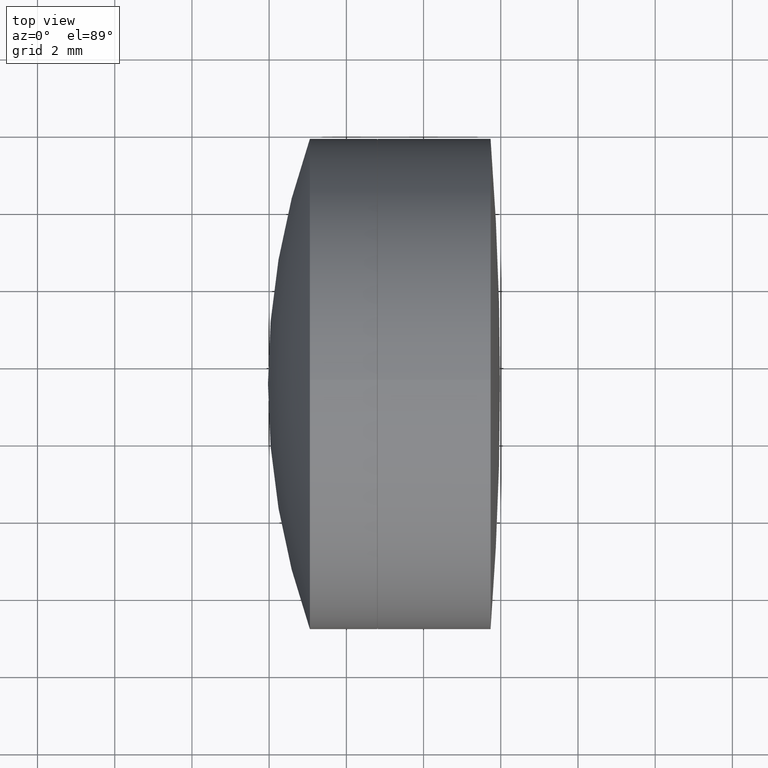
[diagram: clean part render]
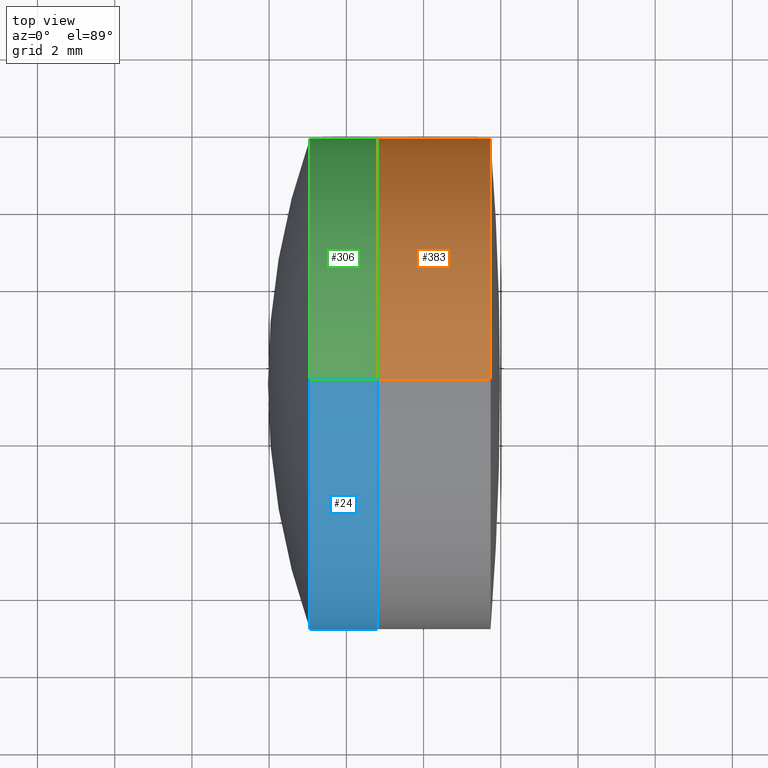
[diagram: same view with three faces highlighted in distinct colors, each labeled with its STEP entity id]
A machine part, top view with three faces highlighted in distinct colors.
Their STEP definitions:

[orange] entity #383 — the highlighted cylindrical surface (partial cylindrical patch) has radius 6.35 mm, axis along (-1, -0, -0).
#9 = EDGE_LOOP ( 'NONE', ( #350, #143, #53, #262, #276, #243 ) ) ;
#16 = DIRECTION ( 'NONE',  ( -1.000000000000000000, -0.000000000000000000, -0.000000000000000000 ) ) ;
#18 = DIRECTION ( 'NONE',  ( 0.000000000000000000, 0.000000000000000000, 1.000000000000000000 ) ) ;
#23 = DIRECTION ( 'NONE',  ( 0.000000000000000000, 0.000000000000000000, 1.000000000000000000 ) ) ;
#25 = VECTOR ( 'NONE', #446, 1000.000000000000000 ) ;
#32 = CIRCLE ( 'NONE', #51, 6.349999999999999645 ) ;
#51 = AXIS2_PLACEMENT_3D ( 'NONE', #328, #397, #18 ) ;
#53 = ORIENTED_EDGE ( 'NONE', *, *, #160, .F. ) ;
#62 = CARTESIAN_POINT ( 'NONE',  ( -74.26425793104048978, 21.84225014134576170, 0.000000000000000000 ) ) ;
#63 = AXIS2_PLACEMENT_3D ( 'NONE', #310, #241, #314 ) ;
#73 = VERTEX_POINT ( 'NONE', #192 ) ;
#79 = EDGE_CURVE ( 'NONE', #193, #124, #360, .T. ) ;
#80 = CARTESIAN_POINT ( 'NONE',  ( -77.18875715362992196, 21.84225014134572262, 0.000000000000000000 ) ) ;
#87 = AXIS2_PLACEMENT_3D ( 'NONE', #369, #229, #23 ) ;
#110 = CARTESIAN_POINT ( 'NONE',  ( -77.18875715362992196, 15.49225014134571232, 0.000000000000000000 ) ) ;
#117 = CARTESIAN_POINT ( 'NONE',  ( -76.01897937436920927, 15.49225014134571232, 0.000000000000000000 ) ) ;
#120 = DIRECTION ( 'NONE',  ( 0.000000000000000000, 0.000000000000000000, 1.000000000000000000 ) ) ;
#124 = VERTEX_POINT ( 'NONE', #62 ) ;
#142 = CARTESIAN_POINT ( 'NONE',  ( -76.01897937436920927, 15.49225014134571232, -6.349999999999999645 ) ) ;
#143 = ORIENTED_EDGE ( 'NONE', *, *, #149, .T. ) ;
#149 = EDGE_CURVE ( 'NONE', #209, #73, #250, .T. ) ;
#160 = EDGE_CURVE ( 'NONE', #263, #73, #258, .T. ) ;
#174 = CARTESIAN_POINT ( 'NONE',  ( -77.18875715362992196, 15.49225014134571232, 6.349999999999999645 ) ) ;
#178 = DIRECTION ( 'NONE',  ( -1.000000000000000000, -0.000000000000000000, -0.000000000000000000 ) ) ;
#180 = LINE ( 'NONE', #324, #302 ) ;
#192 = CARTESIAN_POINT ( 'NONE',  ( -77.18875715362992196, 15.49225014134571232, -6.349999999999999645 ) ) ;
#193 = VERTEX_POINT ( 'NONE', #382 ) ;
#198 = AXIS2_PLACEMENT_3D ( 'NONE', #117, #357, #120 ) ;
#209 = VERTEX_POINT ( 'NONE', #414 ) ;
#229 = DIRECTION ( 'NONE',  ( -1.000000000000000000, -0.000000000000000000, -0.000000000000000000 ) ) ;
#241 = DIRECTION ( 'NONE',  ( -1.000000000000000000, -0.000000000000000000, -0.000000000000000000 ) ) ;
#243 = ORIENTED_EDGE ( 'NONE', *, *, #79, .T. ) ;
#250 = LINE ( 'NONE', #142, #25 ) ;
#258 = CIRCLE ( 'NONE', #330, 6.349999999999999645 ) ;
#260 = CIRCLE ( 'NONE', #63, 6.349999999999999645 ) ;
#262 = ORIENTED_EDGE ( 'NONE', *, *, #280, .F. ) ;
#263 = VERTEX_POINT ( 'NONE', #80 ) ;
#276 = ORIENTED_EDGE ( 'NONE', *, *, #428, .F. ) ;
#280 = EDGE_CURVE ( 'NONE', #442, #263, #260, .T. ) ;
#295 = FACE_OUTER_BOUND ( 'NONE', #9, .T. ) ;
#302 = VECTOR ( 'NONE', #16, 1000.000000000000000 ) ;
#310 = CARTESIAN_POINT ( 'NONE',  ( -77.18875715362992196, 15.49225014134571232, 0.000000000000000000 ) ) ;
#314 = DIRECTION ( 'NONE',  ( 0.000000000000000000, 0.000000000000000000, 1.000000000000000000 ) ) ;
#324 = CARTESIAN_POINT ( 'NONE',  ( -76.01897937436920927, 15.49225014134571232, 6.349999999999999645 ) ) ;
#328 = CARTESIAN_POINT ( 'NONE',  ( -74.26425793104050399, 15.49225014134571232, 0.000000000000000000 ) ) ;
#330 = AXIS2_PLACEMENT_3D ( 'NONE', #110, #178, #386 ) ;
#350 = ORIENTED_EDGE ( 'NONE', *, *, #372, .T. ) ;
#357 = DIRECTION ( 'NONE',  ( -1.000000000000000000, -0.000000000000000000, -0.000000000000000000 ) ) ;
#360 = CIRCLE ( 'NONE', #87, 6.349999999999999645 ) ;
#364 = CYLINDRICAL_SURFACE ( 'NONE', #198, 6.349999999999999645 ) ;
#369 = CARTESIAN_POINT ( 'NONE',  ( -74.26425793104050399, 15.49225014134571232, 0.000000000000000000 ) ) ;
#372 = EDGE_CURVE ( 'NONE', #124, #209, #32, .T. ) ;
#382 = CARTESIAN_POINT ( 'NONE',  ( -74.26425793104050399, 15.49225014134571232, 6.349999999999999645 ) ) ;
#383 = ADVANCED_FACE ( 'NONE', ( #295 ), #364, .T. ) ;
#386 = DIRECTION ( 'NONE',  ( 0.000000000000000000, 0.000000000000000000, 1.000000000000000000 ) ) ;
#397 = DIRECTION ( 'NONE',  ( -1.000000000000000000, -0.000000000000000000, -0.000000000000000000 ) ) ;
#414 = CARTESIAN_POINT ( 'NONE',  ( -74.26425793104050399, 15.49225014134571232, -6.349999999999999645 ) ) ;
#428 = EDGE_CURVE ( 'NONE', #193, #442, #180, .T. ) ;
#442 = VERTEX_POINT ( 'NONE', #174 ) ;
#446 = DIRECTION ( 'NONE',  ( -1.000000000000000000, -0.000000000000000000, -0.000000000000000000 ) ) ;

[blue] entity #24 — the highlighted cylindrical surface (partial cylindrical patch) has radius 6.35 mm, axis along (-1, -0, -0).
#1 = EDGE_CURVE ( 'NONE', #164, #22, #299, .T. ) ;
#20 = CARTESIAN_POINT ( 'NONE',  ( -80.03096436547446046, 15.49148678616774788, -0.009771238364928054587 ) ) ;
#21 = VECTOR ( 'NONE', #353, 1000.000000000000000 ) ;
#22 = VERTEX_POINT ( 'NONE', #218 ) ;
#24 = ADVANCED_FACE ( 'NONE', ( #112 ), #187, .T. ) ;
#43 = CIRCLE ( 'NONE', #405, 6.349999999999999645 ) ;
#48 = CARTESIAN_POINT ( 'NONE',  ( -77.20144514165072280, 15.49148678616774788, -0.009771238364928054587 ) ) ;
#64 = CARTESIAN_POINT ( 'NONE',  ( -78.94570583853140988, 15.49148678616774788, -0.009771238364928054587 ) ) ;
#69 = EDGE_CURVE ( 'NONE', #380, #439, #89, .T. ) ;
#76 = VERTEX_POINT ( 'NONE', #333 ) ;
#86 = EDGE_CURVE ( 'NONE', #246, #380, #43, .T. ) ;
#88 = CARTESIAN_POINT ( 'NONE',  ( -77.20144514165072280, 15.49148678616774788, 6.340228761635072097 ) ) ;
#89 = LINE ( 'NONE', #251, #343 ) ;
#90 = CARTESIAN_POINT ( 'NONE',  ( -78.94570583853140988, 15.49148678616774788, 6.340228761635072097 ) ) ;
#97 = DIRECTION ( 'NONE',  ( 0.000000000000000000, 0.000000000000000000, 1.000000000000000000 ) ) ;
#111 = EDGE_CURVE ( 'NONE', #76, #439, #323, .T. ) ;
#112 = FACE_OUTER_BOUND ( 'NONE', #345, .T. ) ;
#122 = ORIENTED_EDGE ( 'NONE', *, *, #1, .F. ) ;
#127 = DIRECTION ( 'NONE',  ( 0.000000000000000000, 0.000000000000000000, 1.000000000000000000 ) ) ;
#132 = DIRECTION ( 'NONE',  ( -1.000000000000000000, -0.000000000000000000, -0.000000000000000000 ) ) ;
#144 = EDGE_CURVE ( 'NONE', #22, #76, #242, .T. ) ;
#157 = ORIENTED_EDGE ( 'NONE', *, *, #144, .F. ) ;
#158 = CARTESIAN_POINT ( 'NONE',  ( -77.20144514165072280, 15.49148678616774788, -0.009771238364928054587 ) ) ;
#159 = AXIS2_PLACEMENT_3D ( 'NONE', #227, #403, #211 ) ;
#164 = VERTEX_POINT ( 'NONE', #292 ) ;
#187 = CYLINDRICAL_SURFACE ( 'NONE', #370, 6.349999999999999645 ) ;
#188 = DIRECTION ( 'NONE',  ( -1.000000000000000000, -0.000000000000000000, -0.000000000000000000 ) ) ;
#206 = AXIS2_PLACEMENT_3D ( 'NONE', #48, #427, #322 ) ;
#211 = DIRECTION ( 'NONE',  ( 0.000000000000000000, 0.000000000000000000, 1.000000000000000000 ) ) ;
#218 = CARTESIAN_POINT ( 'NONE',  ( -78.94570583853140988, 15.49148678616774788, -6.359771238364928081 ) ) ;
#227 = CARTESIAN_POINT ( 'NONE',  ( -78.94570583853140988, 15.49148678616774788, -0.009771238364928054587 ) ) ;
#242 = CIRCLE ( 'NONE', #159, 6.349999999999999645 ) ;
#246 = VERTEX_POINT ( 'NONE', #388 ) ;
#249 = DIRECTION ( 'NONE',  ( 0.000000000000000000, 0.000000000000000000, 1.000000000000000000 ) ) ;
#251 = CARTESIAN_POINT ( 'NONE',  ( -80.03096436547446046, 15.49148678616774788, 6.340228761635072097 ) ) ;
#292 = CARTESIAN_POINT ( 'NONE',  ( -77.20144514165072280, 15.49148678616774788, -6.359771238364928081 ) ) ;
#299 = LINE ( 'NONE', #433, #21 ) ;
#300 = AXIS2_PLACEMENT_3D ( 'NONE', #64, #132, #97 ) ;
#301 = ORIENTED_EDGE ( 'NONE', *, *, #415, .T. ) ;
#304 = DIRECTION ( 'NONE',  ( -1.000000000000000000, -0.000000000000000000, -0.000000000000000000 ) ) ;
#322 = DIRECTION ( 'NONE',  ( 0.000000000000000000, 0.000000000000000000, 1.000000000000000000 ) ) ;
#323 = CIRCLE ( 'NONE', #300, 6.349999999999999645 ) ;
#333 = CARTESIAN_POINT ( 'NONE',  ( -78.94570583853140988, 9.141486786167750012, -0.009771238364928831743 ) ) ;
#343 = VECTOR ( 'NONE', #366, 1000.000000000000000 ) ;
#345 = EDGE_LOOP ( 'NONE', ( #122, #301, #430, #447, #376, #157 ) ) ;
#353 = DIRECTION ( 'NONE',  ( -1.000000000000000000, -0.000000000000000000, -0.000000000000000000 ) ) ;
#361 = CIRCLE ( 'NONE', #206, 6.349999999999999645 ) ;
#366 = DIRECTION ( 'NONE',  ( -1.000000000000000000, -0.000000000000000000, -0.000000000000000000 ) ) ;
#370 = AXIS2_PLACEMENT_3D ( 'NONE', #20, #188, #249 ) ;
#376 = ORIENTED_EDGE ( 'NONE', *, *, #111, .F. ) ;
#380 = VERTEX_POINT ( 'NONE', #88 ) ;
#388 = CARTESIAN_POINT ( 'NONE',  ( -77.20144514165072280, 9.141486786167744683, -0.009771238364928831743 ) ) ;
#403 = DIRECTION ( 'NONE',  ( -1.000000000000000000, -0.000000000000000000, -0.000000000000000000 ) ) ;
#405 = AXIS2_PLACEMENT_3D ( 'NONE', #158, #304, #127 ) ;
#415 = EDGE_CURVE ( 'NONE', #164, #246, #361, .T. ) ;
#427 = DIRECTION ( 'NONE',  ( -1.000000000000000000, -0.000000000000000000, -0.000000000000000000 ) ) ;
#430 = ORIENTED_EDGE ( 'NONE', *, *, #86, .T. ) ;
#433 = CARTESIAN_POINT ( 'NONE',  ( -80.03096436547446046, 15.49148678616774788, -6.359771238364928081 ) ) ;
#439 = VERTEX_POINT ( 'NONE', #90 ) ;
#447 = ORIENTED_EDGE ( 'NONE', *, *, #69, .T. ) ;

[green] entity #306 — the highlighted cylindrical surface (partial cylindrical patch) has radius 6.35 mm, axis along (-1, -0, -0).
#1 = EDGE_CURVE ( 'NONE', #164, #22, #299, .T. ) ;
#3 = DIRECTION ( 'NONE',  ( 0.000000000000000000, 0.000000000000000000, 1.000000000000000000 ) ) ;
#19 = DIRECTION ( 'NONE',  ( 0.000000000000000000, 0.000000000000000000, 1.000000000000000000 ) ) ;
#21 = VECTOR ( 'NONE', #353, 1000.000000000000000 ) ;
#22 = VERTEX_POINT ( 'NONE', #218 ) ;
#28 = ORIENTED_EDGE ( 'NONE', *, *, #194, .F. ) ;
#36 = EDGE_CURVE ( 'NONE', #402, #164, #293, .T. ) ;
#67 = VERTEX_POINT ( 'NONE', #152 ) ;
#69 = EDGE_CURVE ( 'NONE', #380, #439, #89, .T. ) ;
#75 = CYLINDRICAL_SURFACE ( 'NONE', #336, 6.349999999999999645 ) ;
#78 = DIRECTION ( 'NONE',  ( -1.000000000000000000, -0.000000000000000000, -0.000000000000000000 ) ) ;
#88 = CARTESIAN_POINT ( 'NONE',  ( -77.20144514165072280, 15.49148678616774788, 6.340228761635072097 ) ) ;
#89 = LINE ( 'NONE', #251, #343 ) ;
#90 = CARTESIAN_POINT ( 'NONE',  ( -78.94570583853140988, 15.49148678616774788, 6.340228761635072097 ) ) ;
#93 = CIRCLE ( 'NONE', #285, 6.349999999999999645 ) ;
#106 = CARTESIAN_POINT ( 'NONE',  ( -80.03096436547446046, 15.49148678616774788, -0.009771238364928054587 ) ) ;
#115 = DIRECTION ( 'NONE',  ( 0.000000000000000000, 0.000000000000000000, 1.000000000000000000 ) ) ;
#121 = DIRECTION ( 'NONE',  ( -1.000000000000000000, -0.000000000000000000, -0.000000000000000000 ) ) ;
#125 = EDGE_CURVE ( 'NONE', #380, #402, #195, .T. ) ;
#140 = CARTESIAN_POINT ( 'NONE',  ( -78.94570583853140988, 15.49148678616774788, -0.009771238364928054587 ) ) ;
#146 = ORIENTED_EDGE ( 'NONE', *, *, #1, .T. ) ;
#148 = AXIS2_PLACEMENT_3D ( 'NONE', #183, #121, #115 ) ;
#152 = CARTESIAN_POINT ( 'NONE',  ( -78.94570583853140988, 21.84148678616774575, -0.009771238364928054587 ) ) ;
#164 = VERTEX_POINT ( 'NONE', #292 ) ;
#175 = EDGE_LOOP ( 'NONE', ( #317, #146, #371, #28, #320, #401 ) ) ;
#183 = CARTESIAN_POINT ( 'NONE',  ( -78.94570583853140988, 15.49148678616774788, -0.009771238364928054587 ) ) ;
#194 = EDGE_CURVE ( 'NONE', #439, #67, #93, .T. ) ;
#195 = CIRCLE ( 'NONE', #205, 6.349999999999999645 ) ;
#196 = CARTESIAN_POINT ( 'NONE',  ( -77.20144514165072280, 15.49148678616774788, -0.009771238364928054587 ) ) ;
#205 = AXIS2_PLACEMENT_3D ( 'NONE', #196, #426, #219 ) ;
#218 = CARTESIAN_POINT ( 'NONE',  ( -78.94570583853140988, 15.49148678616774788, -6.359771238364928081 ) ) ;
#219 = DIRECTION ( 'NONE',  ( 0.000000000000000000, 0.000000000000000000, 1.000000000000000000 ) ) ;
#245 = DIRECTION ( 'NONE',  ( -1.000000000000000000, -0.000000000000000000, -0.000000000000000000 ) ) ;
#251 = CARTESIAN_POINT ( 'NONE',  ( -80.03096436547446046, 15.49148678616774788, 6.340228761635072097 ) ) ;
#267 = CIRCLE ( 'NONE', #148, 6.349999999999999645 ) ;
#278 = DIRECTION ( 'NONE',  ( -1.000000000000000000, -0.000000000000000000, -0.000000000000000000 ) ) ;
#285 = AXIS2_PLACEMENT_3D ( 'NONE', #140, #278, #375 ) ;
#292 = CARTESIAN_POINT ( 'NONE',  ( -77.20144514165072280, 15.49148678616774788, -6.359771238364928081 ) ) ;
#293 = CIRCLE ( 'NONE', #308, 6.349999999999999645 ) ;
#299 = LINE ( 'NONE', #433, #21 ) ;
#306 = ADVANCED_FACE ( 'NONE', ( #416 ), #75, .T. ) ;
#308 = AXIS2_PLACEMENT_3D ( 'NONE', #387, #78, #19 ) ;
#311 = EDGE_CURVE ( 'NONE', #67, #22, #267, .T. ) ;
#317 = ORIENTED_EDGE ( 'NONE', *, *, #36, .T. ) ;
#320 = ORIENTED_EDGE ( 'NONE', *, *, #69, .F. ) ;
#336 = AXIS2_PLACEMENT_3D ( 'NONE', #106, #245, #3 ) ;
#343 = VECTOR ( 'NONE', #366, 1000.000000000000000 ) ;
#353 = DIRECTION ( 'NONE',  ( -1.000000000000000000, -0.000000000000000000, -0.000000000000000000 ) ) ;
#362 = CARTESIAN_POINT ( 'NONE',  ( -77.20144514165072280, 21.84148678616775285, -0.009771238364928054587 ) ) ;
#366 = DIRECTION ( 'NONE',  ( -1.000000000000000000, -0.000000000000000000, -0.000000000000000000 ) ) ;
#371 = ORIENTED_EDGE ( 'NONE', *, *, #311, .F. ) ;
#375 = DIRECTION ( 'NONE',  ( 0.000000000000000000, 0.000000000000000000, 1.000000000000000000 ) ) ;
#380 = VERTEX_POINT ( 'NONE', #88 ) ;
#387 = CARTESIAN_POINT ( 'NONE',  ( -77.20144514165072280, 15.49148678616774788, -0.009771238364928054587 ) ) ;
#401 = ORIENTED_EDGE ( 'NONE', *, *, #125, .T. ) ;
#402 = VERTEX_POINT ( 'NONE', #362 ) ;
#416 = FACE_OUTER_BOUND ( 'NONE', #175, .T. ) ;
#426 = DIRECTION ( 'NONE',  ( -1.000000000000000000, -0.000000000000000000, -0.000000000000000000 ) ) ;
#433 = CARTESIAN_POINT ( 'NONE',  ( -80.03096436547446046, 15.49148678616774788, -6.359771238364928081 ) ) ;
#439 = VERTEX_POINT ( 'NONE', #90 ) ;